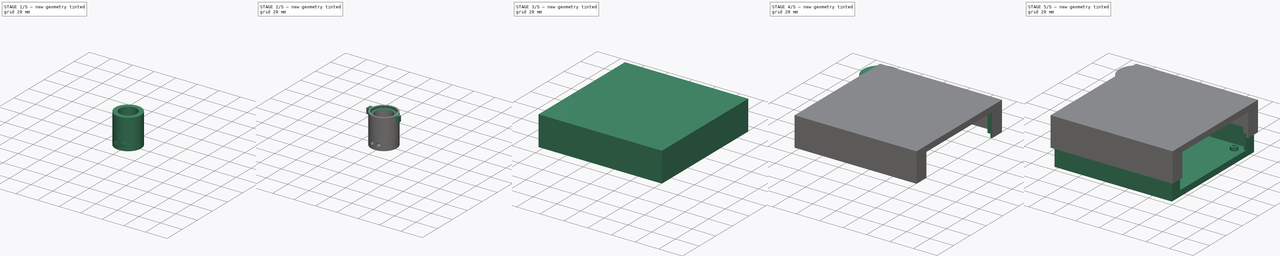
[diagram: build sequence overview — one tinted view per stage of 5, left to right]
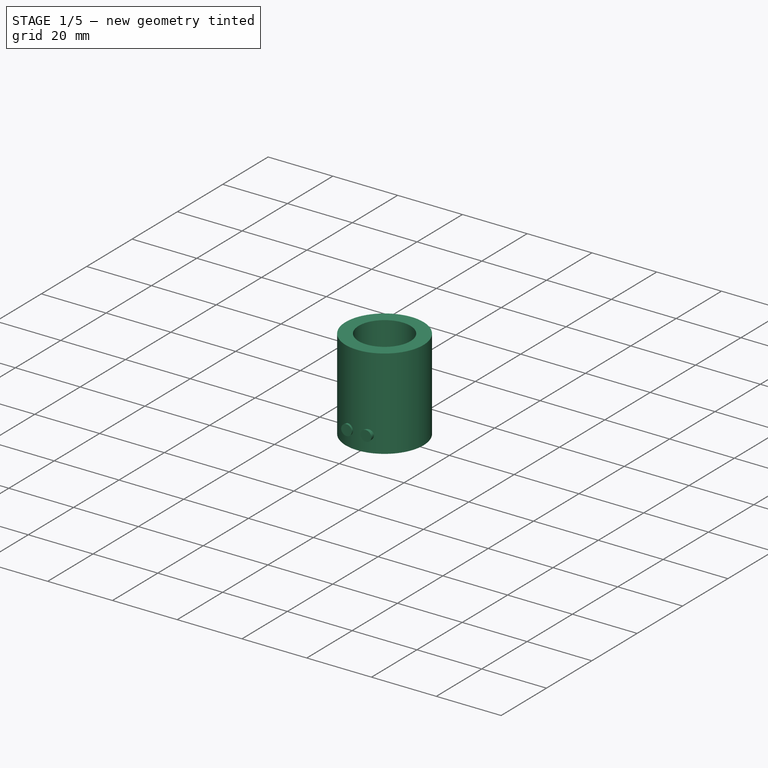
[diagram: stage 1 of 5 — iso view after this stage's code; geometry added in this stage tinted green]
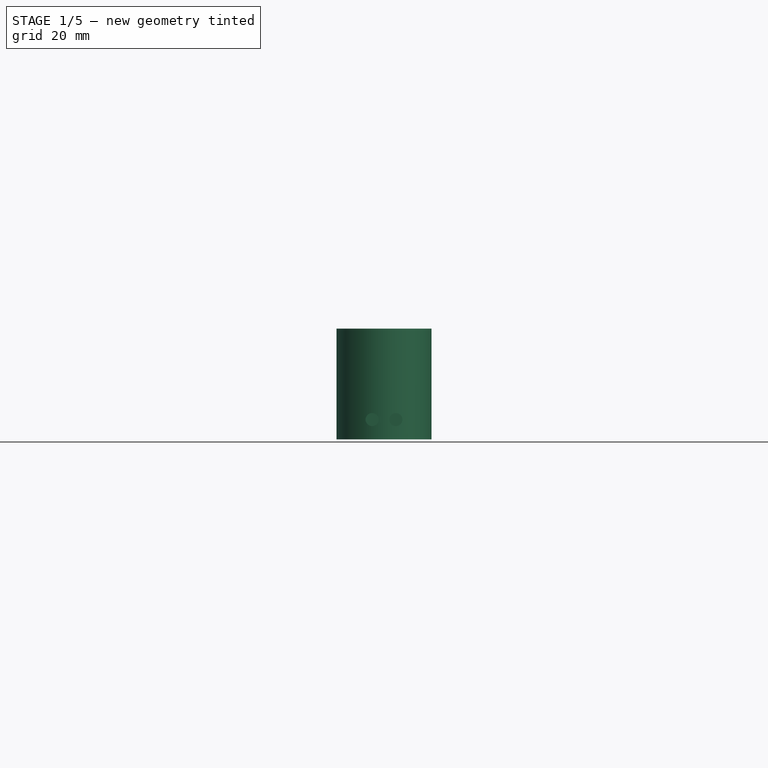
[diagram: stage 1 of 5 — front view after this stage's code; geometry added in this stage tinted green]
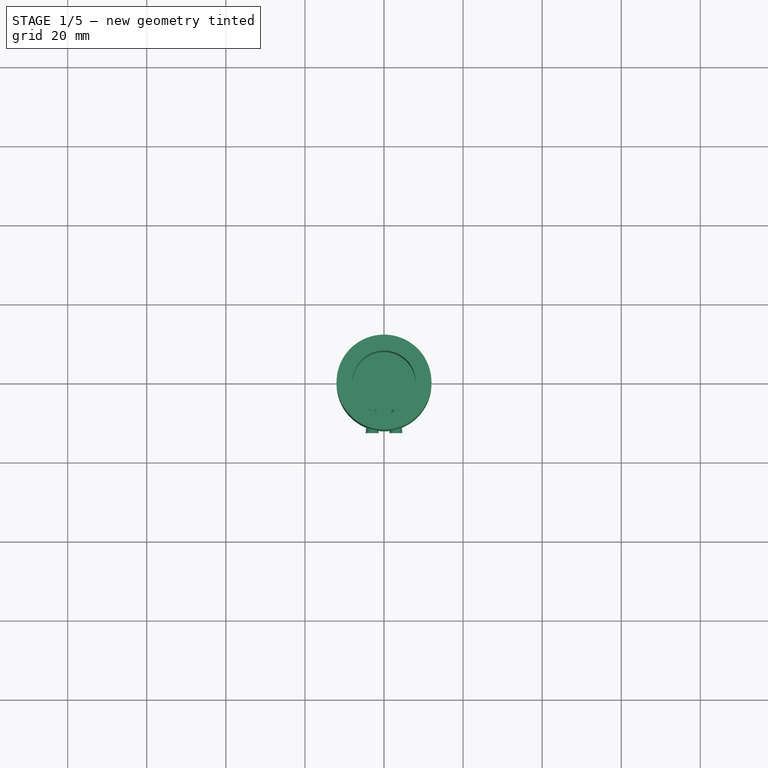
[diagram: stage 1 of 5 — top view after this stage's code; geometry added in this stage tinted green]
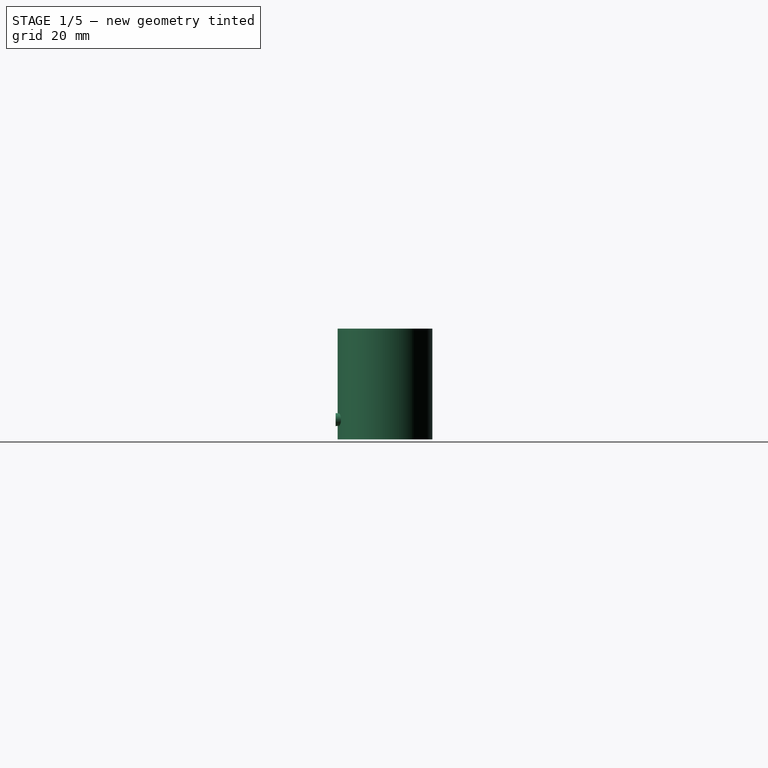
[diagram: stage 1 of 5 — right view after this stage's code; geometry added in this stage tinted green]
FCSTD DOCUMENT  (FreeCAD 0.20R29177 (Git))
Label: transwell_self_sealing
License: All rights reserved
LicenseURL: http://en.wikipedia.org/wiki/All_rights_reserved
objects: Sketcher::SketchObject×22, PartDesign::Pocket×12, PartDesign::Pad×6, PartDesign::Body×6, PartDesign::Fillet×2, PartDesign::AdditiveLoft×2, Spreadsheet::Sheet×1, Part::Compound×1, Part::Cut×1
note: 74 computed .brp shape members not serialized (recipe doc carries the construction recipe); baked Part::Feature solids carry a one-line shape summary decoded from their .brp

FEATURE [PartDesign::Body] Body  label="Case Bottom"
  Group = -> [Sketch,Pad,Sketch001,Pocket,Sketch002,Pad001,Sketch003,Pocket002]
  Origin = -> Origin
  Tip = -> Pocket002
FEATURE [Sketcher::SketchObject] Sketch004
  FullyConstrained = true
  MapMode = 5
  Support = -> [XY_Plane002]
  expr: Constraints[1] = <<parameters>>.TBU_outer_dia
  sketch-geometry (1):
    g0: Circle CenterX=0 CenterY=0 CenterZ=0 NormalX=0 NormalY=0 NormalZ=1 AngleXU=0 Radius=12
  constraints (2):
    c: Coincident(g0,g-1)
    c: Diameter(g0) = 24
FEATURE [PartDesign::Pad] Pad002  label="main body"
  Direction = (0,0,1)
  Length = 28
  Length2 = 10
  Profile = -> Sketch004
  ReferenceAxis = -> Sketch004 [N_Axis]
  Type = 0
  expr: Length = <<parameters>>.tbu_z_length
FEATURE [Sketcher::SketchObject] Sketch005
  AttachmentOffset = pos=(0,0,2) rot=(0,0,1;0rad)
  FullyConstrained = true
  MapMode = 5
  Placement = pos=(0,0,2) rot=(0,0,1;0rad)
  Support = -> [XY_Plane002]
  expr: .AttachmentOffset.Base.z = <<parameters>>.tbu_bottom_thickness
  expr: Constraints[1] = <<parameters>>.tbu_inner_dia
  sketch-geometry (1):
    g0: Circle CenterX=0 CenterY=0 CenterZ=0 NormalX=0 NormalY=0 NormalZ=1 AngleXU=0 Radius=8
  constraints (2):
    c: Coincident(g0,g-1)
    c: Diameter(g0) = 16
FEATURE [PartDesign::Pocket] Pocket003  label="inner chamber"
  BaseFeature = -> Pad002
  Direction = (0,0,-1)
  Length = 26
  Length2 = 5
  Profile = -> Sketch005
  ReferenceAxis = -> Sketch005 [N_Axis]
  Reversed = true
  Type = 0
  expr: Length = <<parameters>>.tbu_z_length - <<parameters>>.tbu_bottom_thickness
FEATURE [PartDesign::Body] Body002  label="transwell Bottom Unit"
  Group = -> [Sketch004,Pad002,Sketch005,Pocket003,Sketch006,Pocket004,Sketch008,Pad003,Fillet,Fillet001]
  Origin = -> Origin002
  Tip = -> Fillet001
FEATURE [Sketcher::SketchObject] Sketch021
  AttachmentOffset = pos=(-6,0,0) rot=(0,0,1;0rad)
  FullyConstrained = true
  MapMode = 5
  Placement = pos=(-6,0,0) rot=(1,0,0;1.5708rad)
  Support = -> [XZ_Plane005]
  expr: .AttachmentOffset.Base.x = -<<parameters>>.tbu_electrode_sep
  expr: Constraints[0] = <<parameters>>.tbu_electrode_dia
  expr: Constraints[1] = <<parameters>>.tbu_electrode_sep / 2
  expr: Constraints[2] = <<parameters>>.tbu_electrode_z_displace
  sketch-geometry (1):
    g0: Circle CenterX=3 CenterY=5 CenterZ=0 NormalX=0 NormalY=0 NormalZ=1 AngleXU=0 Radius=1
  constraints (3):
    c: Diameter(g0) = 2
    c: DistanceX(g-1,g0) = 3
    c: DistanceY(g-1,g0) = 5
FEATURE [Sketcher::SketchObject] Sketch022
  AttachmentOffset = pos=(-6,0,6) rot=(0,0,1;0rad)
  FullyConstrained = true
  MapMode = 5
  Placement = pos=(-6,-6,-1.3e-15) rot=(1,0,0;1.5708rad)
  Support = -> [XZ_Plane004]
  expr: .AttachmentOffset.Base.x = -<<parameters>>.tbu_electrode_sep
  expr: .AttachmentOffset.Base.y = 0
  expr: .AttachmentOffset.Base.z = <<parameters>>.tbu_gap_outer_inner_electrode
  expr: Constraints[0] = <<parameters>>.tbu_electrode_sep / 2
  expr: Constraints[1] = <<parameters>>.tbu_electrode_z_displace
  expr: Constraints[2] = <<parameters>>.tbu_outer_electrode_dia
  sketch-geometry (1):
    g0: Circle CenterX=3 CenterY=5 CenterZ=0 NormalX=0 NormalY=0 NormalZ=1 AngleXU=0 Radius=1.65
  constraints (3):
    c: DistanceX(g-1,g0) = 3
    c: DistanceY(g-1,g0) = 5
    c: Diameter(g0) = 3.3
FEATURE [PartDesign::AdditiveLoft] AdditiveLoft001  label="electrode 002"
  Closed = false
  Placement = pos=(0,0,0) rot=(1,0,0;1.5708rad)
  Profile = -> Sketch021
  Ruled = false
  Sections = -> [Sketch022]
FEATURE [PartDesign::Body] Body005  label="electrode_2"
  Group = -> [AdditiveLoft001,Sketch021]
  Origin = -> Origin005
  Tip = -> AdditiveLoft001
FEATURE [Sketcher::SketchObject] Sketch007
  FullyConstrained = true
  MapMode = 5
  Placement = pos=(0,0,0) rot=(1,0,0;1.5708rad)
  Support = -> [XZ_Plane004]
  expr: Constraints[0] = <<parameters>>.tbu_electrode_dia
  expr: Constraints[1] = <<parameters>>.tbu_electrode_sep / 2
  expr: Constraints[2] = <<parameters>>.tbu_electrode_z_displace
  sketch-geometry (1):
    g0: Circle CenterX=3 CenterY=5 CenterZ=0 NormalX=0 NormalY=0 NormalZ=1 AngleXU=0 Radius=1
  constraints (3):
    c: Diameter(g0) = 2
    c: DistanceX(g-1,g0) = 3
    c: DistanceY(g-1,g0) = 5
FEATURE [Sketcher::SketchObject] Sketch020
  AttachmentOffset = pos=(0,0,6) rot=(0,0,1;0rad)
  FullyConstrained = true
  MapMode = 5
  Placement = pos=(0,-6,-1.3e-15) rot=(1,0,0;1.5708rad)
  Support = -> [XZ_Plane004]
  expr: .AttachmentOffset.Base.x = 0
  expr: .AttachmentOffset.Base.y = 0
  expr: .AttachmentOffset.Base.z = <<parameters>>.tbu_gap_outer_inner_electrode
  expr: Constraints[0] = <<parameters>>.tbu_electrode_sep / 2
  expr: Constraints[1] = <<parameters>>.tbu_electrode_z_displace
  expr: Constraints[2] = <<parameters>>.tbu_outer_electrode_dia
  sketch-geometry (1):
    g0: Circle CenterX=3 CenterY=5 CenterZ=0 NormalX=0 NormalY=0 NormalZ=1 AngleXU=0 Radius=1.65
  constraints (3):
    c: DistanceX(g-1,g0) = 3
    c: DistanceY(g-1,g0) = 5
    c: Diameter(g0) = 3.3
FEATURE [PartDesign::AdditiveLoft] AdditiveLoft  label="electrode 1"
  Closed = false
  Placement = pos=(0,0,0) rot=(1,0,0;1.5708rad)
  Profile = -> Sketch007
  Ruled = false
  Sections = -> [Sketch020]
FEATURE [PartDesign::Body] Body004  label="electrode_1"
  Group = -> [Sketch007,Sketch020,AdditiveLoft]
  Origin = -> Origin004
  Tip = -> AdditiveLoft
FEATURE [Part::Compound] Compound  label="electrodes"
  Links = -> [Body004,Body005]
  Placement = pos=(0,-6.5,0) rot=(0,0,1;0rad)
  expr: .Placement.Base.y = -<<parameters>>.tbu_inner_dia / 2 + <<parameters>>.tbu_electrode_y_displace
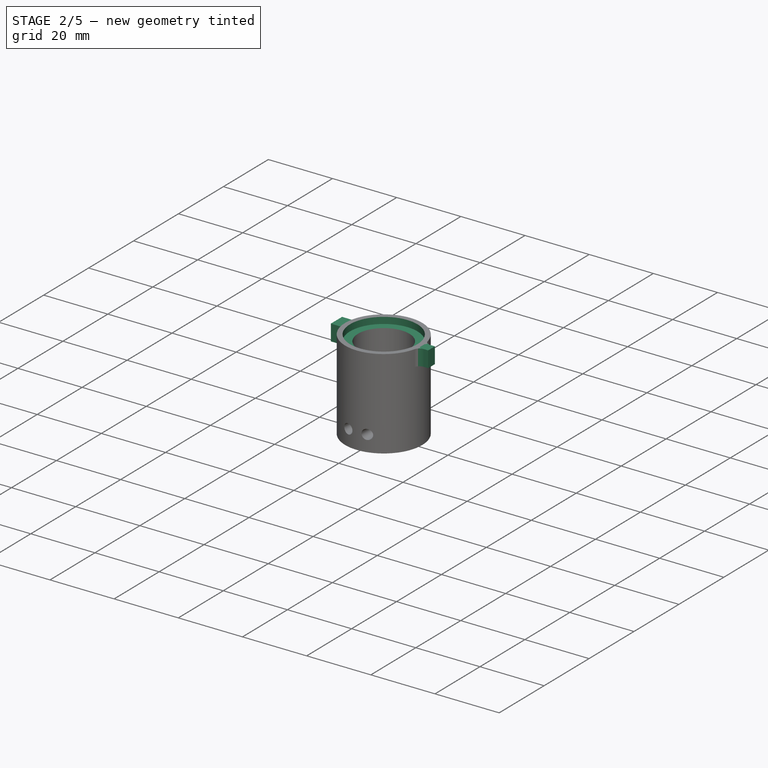
[diagram: stage 2 of 5 — iso view after this stage's code; geometry added in this stage tinted green]
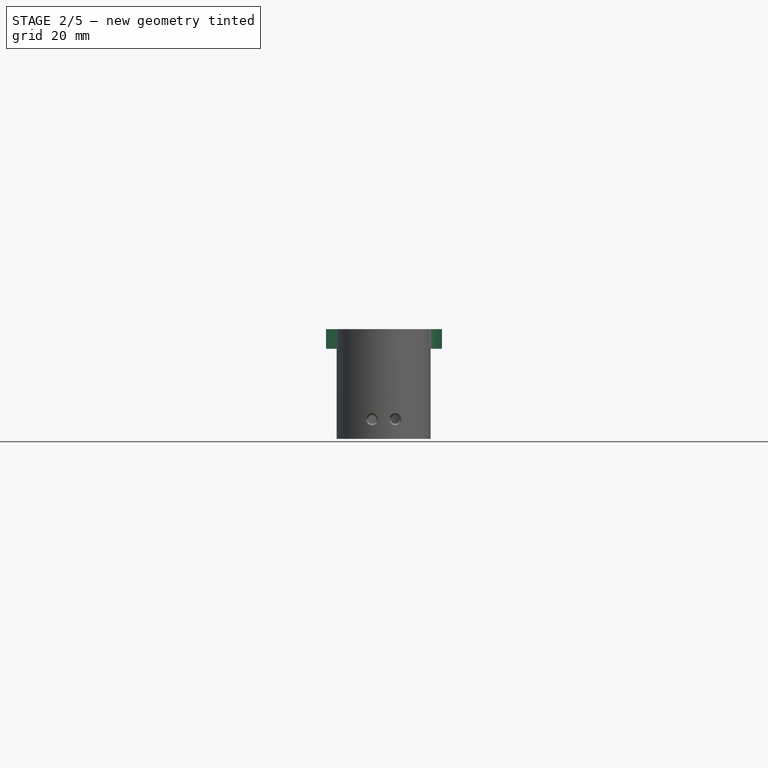
[diagram: stage 2 of 5 — front view after this stage's code; geometry added in this stage tinted green]
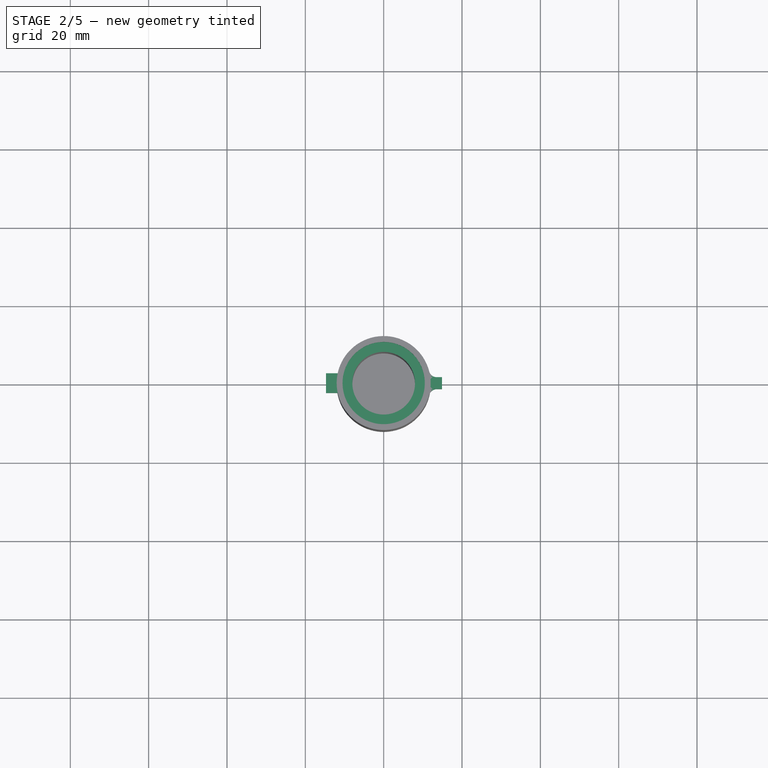
[diagram: stage 2 of 5 — top view after this stage's code; geometry added in this stage tinted green]
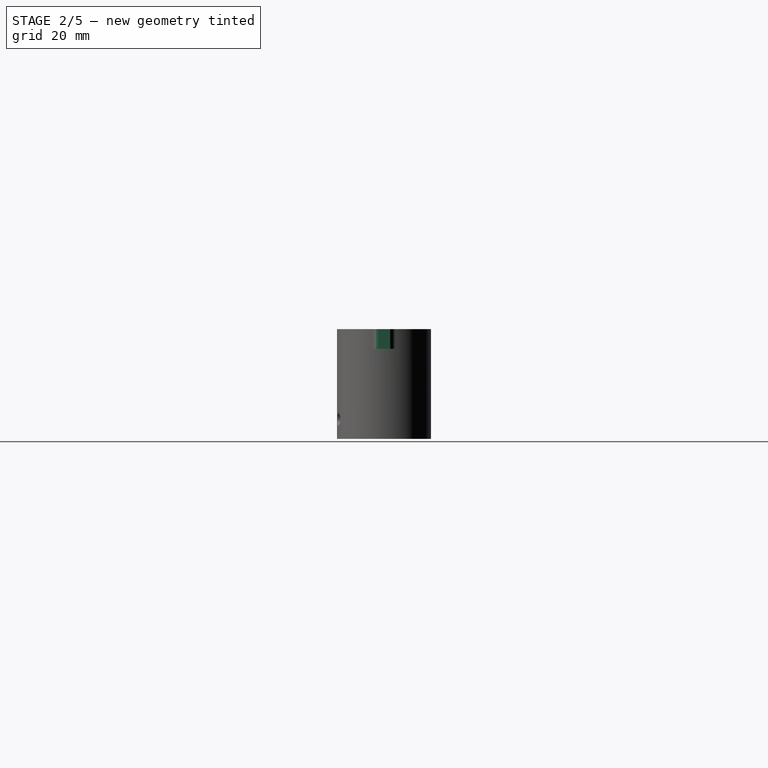
[diagram: stage 2 of 5 — right view after this stage's code; geometry added in this stage tinted green]
FEATURE [Sketcher::SketchObject] Sketch006
  AttachmentOffset = pos=(0,0,26) rot=(0,0,1;0rad)
  FullyConstrained = true
  MapMode = 5
  Placement = pos=(0,0,26) rot=(0,0,1;0rad)
  Support = -> [XY_Plane002]
  expr: .AttachmentOffset.Base.z = <<parameters>>.tbu_inner_rim_above_bottom + <<parameters>>.tbu_bottom_thickness
  expr: Constraints[1] = <<parameters>>.tbu_inner_rim_dia
  sketch-geometry (1):
    g0: Circle CenterX=0 CenterY=0 CenterZ=0 NormalX=0 NormalY=0 NormalZ=1 AngleXU=0 Radius=10.5
  constraints (2):
    c: Coincident(g0,g-1)
    c: Diameter(g0) = 21
FEATURE [PartDesign::Pocket] Pocket004  label="transwell rim platform"
  BaseFeature = -> Pocket003
  Direction = (0,0,-1)
  Length = 2
  Length2 = 5
  Profile = -> Sketch006
  ReferenceAxis = -> Sketch006 [N_Axis]
  Reversed = true
  Type = 0
  expr: Length = <<parameters>>.tbu_z_length - <<parameters>>.tbu_bottom_thickness - <<parameters>>.tbu_inner_rim_above_bottom
FEATURE [Sketcher::SketchObject] Sketch008
  AttachmentOffset = pos=(0,0,28) rot=(0,0,1;0rad)
  FullyConstrained = true
  MapMode = 5
  Placement = pos=(0,0,28) rot=(0,0,1;0rad)
  Support = -> [XY_Plane002]
  expr: .AttachmentOffset.Base.z = <<parameters>>.tbu_z_length
  expr: Constraints[10] = <<parameters>>.tbu_protrus_2_y_length
  expr: Constraints[11] = <<parameters>>.tbu_protrus_1_y_length
  expr: Constraints[12] = <<parameters>>.tbu_protrus_1_x_length
  expr: Constraints[13] = <<parameters>>.tbu_protrus_2_x_length
  expr: Constraints[16] = <<parameters>>.tbu_protrus_1_y_length / 2
  expr: Constraints[17] = <<parameters>>.tbu_protrus_2_y_length / 2
  expr: Constraints[18] = <<parameters>>.TBU_outer_dia / 2
  expr: Constraints[19] = <<parameters>>.TBU_outer_dia / 2
  sketch-geometry (8):
    g0: LineSegment StartX=-11.7367 StartY=2.5 StartZ=0 EndX=-14.7367 EndY=2.5 EndZ=0
    g1: LineSegment StartX=-14.7367 StartY=-2.5 StartZ=0 EndX=-11.7367 EndY=-2.5 EndZ=0
    g2: LineSegment StartX=-14.7367 StartY=2.5 StartZ=0 EndX=-14.7367 EndY=-2.5 EndZ=0
    g3: LineSegment StartX=11.9059 StartY=1.5 StartZ=0 EndX=14.9059 EndY=1.5 EndZ=0
    g4: LineSegment StartX=14.9059 StartY=1.5 StartZ=0 EndX=14.9059 EndY=-1.5 EndZ=0
    g5: LineSegment StartX=14.9059 StartY=-1.5 StartZ=0 EndX=11.9059 EndY=-1.5 EndZ=0
    g6: ArcOfCircle CenterX=0 CenterY=-5e-16 CenterZ=0 NormalX=0 NormalY=0 NormalZ=1 AngleXU=0 Radius=12 StartAngle=2.93172 EndAngle=3.35146
    g7: ArcOfCircle CenterX=0 CenterY=-7e-16 CenterZ=0 NormalX=0 NormalY=0 NormalZ=1 AngleXU=0 Radius=12 StartAngle=6.15786 EndAngle=6.40851
  constraints (26):
    c: Horizontal(g0)
    c: Coincident(g2,g0)
    c: Coincident(g2,g1)
    c: Coincident(g4,g3)
    c: Vertical(g4)
    c: Coincident(g5,g4)
    c: Perpendicular(g3,g4)
    c: Perpendicular(g4,g5)
    c: Perpendicular(g2,g0)
    c: Perpendicular(g2,g1)
    c: DistanceY(g4,g4) = 3
    c: DistanceY(g2,g2) = 5
    c: DistanceX(g0,g0) = 3
    c: DistanceX(g3,g3) = 3
    c: Vertical(g1,g0)
    c: Vertical(g3,g5)
    c: DistanceY(g-1,g0) = 2.5
    c: DistanceY(g-1,g3) = 1.5
    c: Distance(g-1,g0) = 12
    c: Distance(g-1,g3) = 12
    c: Coincident(g6,g0)
    c: Coincident(g6,g1)
    c: DistanceX(g6,g-1) = 0
    c: Coincident(g7,g3)
    c: Coincident(g7,g5)
    c: DistanceX(g6,g7) = 0
FEATURE [PartDesign::Pad] Pad003  label="asymmetric tabs"
  BaseFeature = -> Pocket004
  Direction = (0,0,1)
  Length = 5
  Length2 = 10
  Profile = -> Sketch008
  ReferenceAxis = -> Sketch008 [N_Axis]
  Reversed = true
  Type = 0
  expr: Length = <<parameters>>.tbu_protrus_1_z_length
FEATURE [PartDesign::Body] Body001  label="Case Top"
  Group = -> [Sketch014,Pad005,Sketch015,Pocket009,Sketch016,Pocket010,Sketch017,Sketch018,Sketch019,Pocket011,Pocket012,Pocket013]
  Origin = -> Origin001
  Tip = -> Pocket013
FEATURE [PartDesign::Fillet] Fillet
  Base = -> Pad003 [Edge2,Edge10]
  BaseFeature = -> Pad003
  Radius = 2
  SupportTransform = false
  UseAllEdges = false
  expr: Radius = 2
FEATURE [PartDesign::Fillet] Fillet001
  Base = -> Fillet [Edge11]
  BaseFeature = -> Fillet
  Radius = 2
  SupportTransform = false
  UseAllEdges = false
FEATURE [Part::Cut] Cut  label="transwell bottom unit"
  Base = -> Body002
  Tool = -> Compound
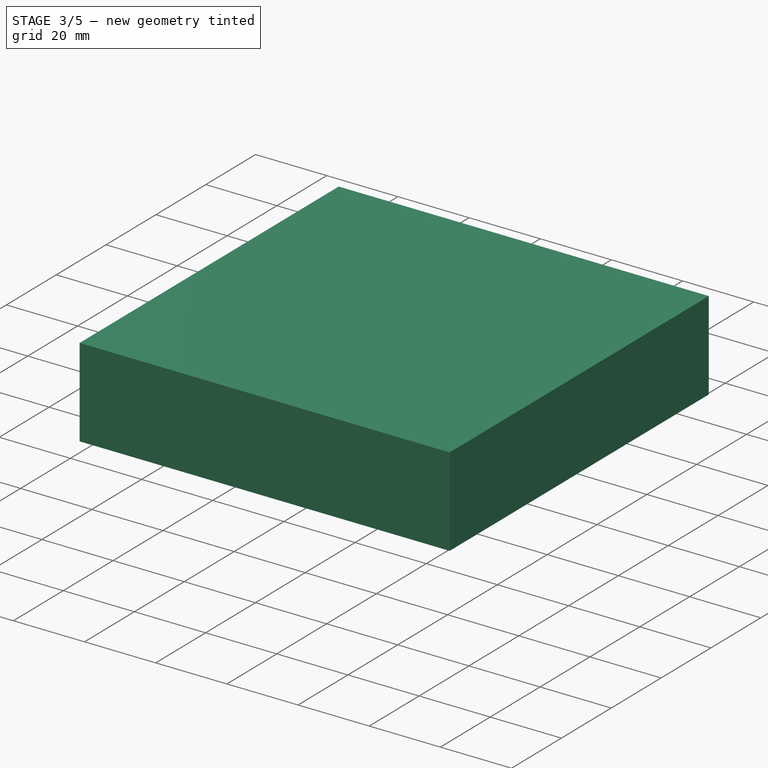
[diagram: stage 3 of 5 — iso view after this stage's code; geometry added in this stage tinted green]
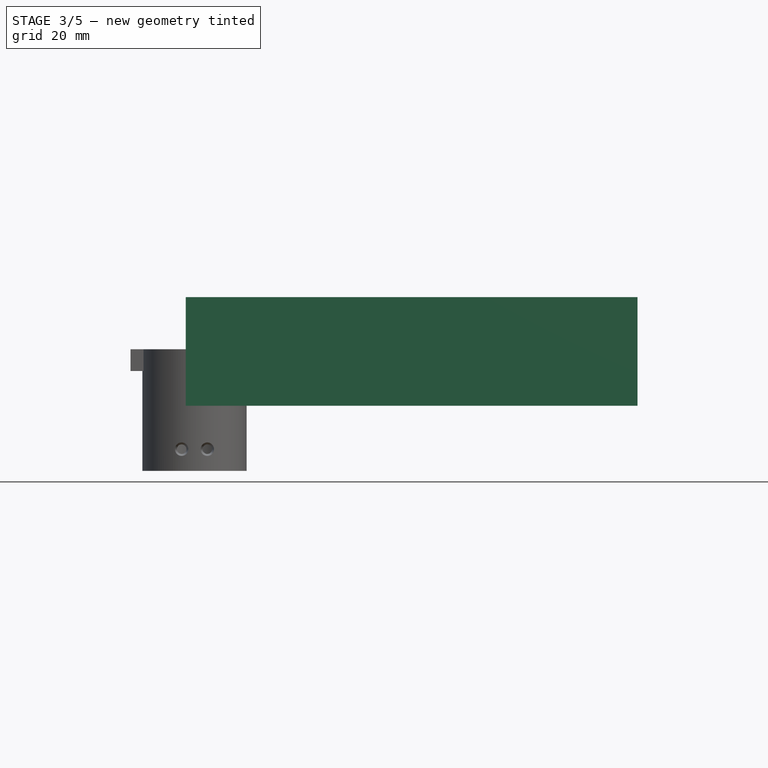
[diagram: stage 3 of 5 — front view after this stage's code; geometry added in this stage tinted green]
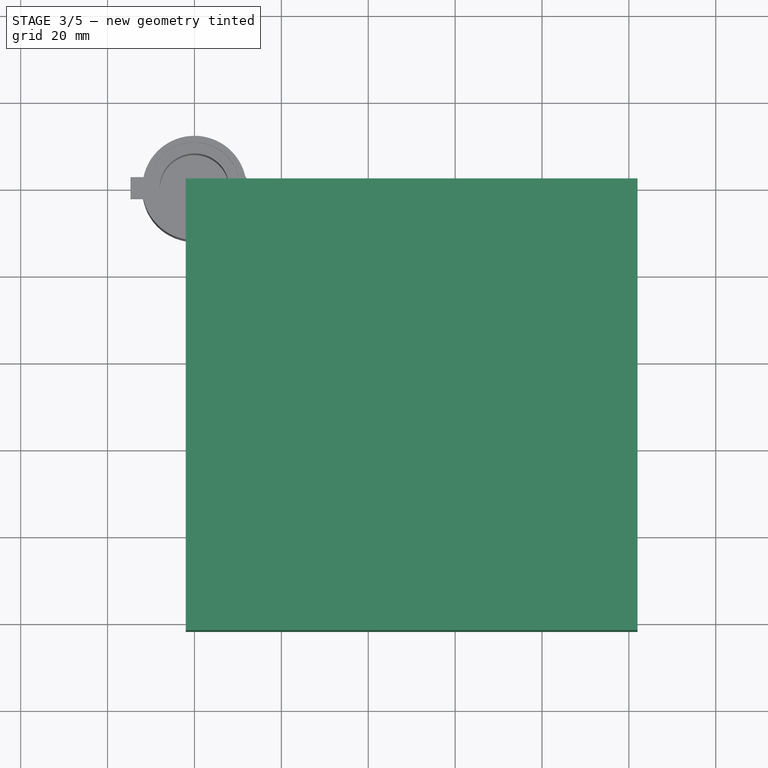
[diagram: stage 3 of 5 — top view after this stage's code; geometry added in this stage tinted green]
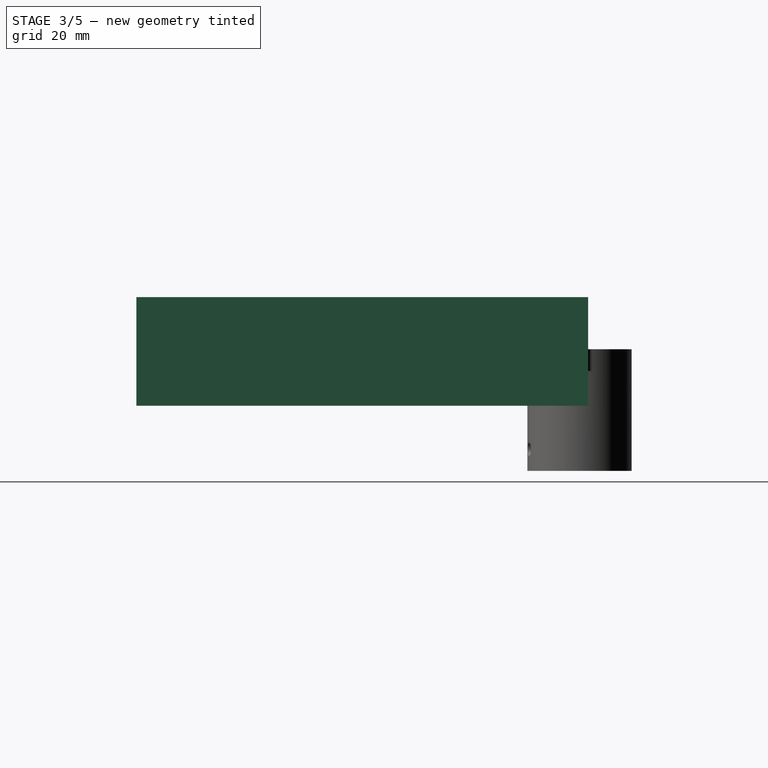
[diagram: stage 3 of 5 — right view after this stage's code; geometry added in this stage tinted green]
FEATURE [PartDesign::Body] Body003  label="transwell top"
  Group = -> [Sketch009,Pad004,Sketch010,Pocket006,Sketch011,Pocket007,Sketch012,Pocket008]
  Origin = -> Origin003
  Tip = -> Pocket008
FEATURE [Sketcher::SketchObject] Sketch014
  AttachmentOffset = pos=(0,0,15) rot=(0,0,1;0rad)
  FullyConstrained = true
  MapMode = 5
  Placement = pos=(0,0,15) rot=(0,0,1;0rad)
  Support = -> [XY_Plane001]
  expr: .AttachmentOffset.Base.z = <<parameters>>.mb_z_length - <<parameters>>.case_top_seam_z_length
  expr: Constraints[10] = <<parameters>>.mb_x_length + 2 * <<parameters>>.case_top_xy_beyond
  expr: Constraints[11] = <<parameters>>.mb_y_length + 2 * <<parameters>>.case_top_xy_beyond
  expr: Constraints[8] = <<parameters>>.case_top_xy_beyond
  expr: Constraints[9] = <<parameters>>.case_top_xy_beyond
  sketch-geometry (4):
    g0: LineSegment StartX=-2 StartY=2 StartZ=0 EndX=102 EndY=2 EndZ=0
    g1: LineSegment StartX=102 StartY=2 StartZ=0 EndX=102 EndY=-102 EndZ=0
    g2: LineSegment StartX=102 StartY=-102 StartZ=0 EndX=-2 EndY=-102 EndZ=0
    g3: LineSegment StartX=-2 StartY=-102 StartZ=0 EndX=-2 EndY=2 EndZ=0
  constraints (12):
    c: Coincident(g0,g1)
    c: Coincident(g1,g2)
    c: Coincident(g2,g3)
    c: Coincident(g3,g0)
    c: Horizontal(g0)
    c: Horizontal(g2)
    c: Vertical(g1)
    c: Vertical(g3)
    c: DistanceX(g0,g-1) = 2
    c: DistanceY(g-1,g0) = 2
    c: DistanceX(g0,g0) = 104
    c: DistanceY(g1,g1) = 104
FEATURE [PartDesign::Pad] Pad005  label="body"
  Direction = (0,0,1)
  Length = 25
  Length2 = 10
  Profile = -> Sketch014
  ReferenceAxis = -> Sketch014 [N_Axis]
  Type = 0
  expr: Length = <<parameters>>.case_top_z_length
FEATURE [Sketcher::SketchObject] Sketch015
  AttachmentOffset = pos=(0,0,15) rot=(0,0,1;0rad)
  FullyConstrained = true
  MapMode = 5
  Placement = pos=(0,0,15) rot=(0,0,1;0rad)
  Support = -> [XY_Plane001]
  expr: .AttachmentOffset.Base.z = <<parameters>>.mb_z_length - <<parameters>>.case_top_seam_z_length
  expr: Constraints[10] = <<parameters>>.mb_x_length + 2 * <<parameters>>.case_top_xy_seam_gaps
  expr: Constraints[11] = <<parameters>>.mb_y_length + 2 * <<parameters>>.case_top_xy_seam_gaps
  expr: Constraints[8] = <<parameters>>.case_top_xy_seam_gaps
  expr: Constraints[9] = <<parameters>>.case_top_xy_seam_gaps
  sketch-geometry (4):
    g0: LineSegment StartX=-0.5 StartY=0.5 StartZ=0 EndX=100.5 EndY=0.5 EndZ=0
    g1: LineSegment StartX=100.5 StartY=0.5 StartZ=0 EndX=100.5 EndY=-100.5 EndZ=0
    g2: LineSegment StartX=100.5 StartY=-100.5 StartZ=0 EndX=-0.5 EndY=-100.5 EndZ=0
    g3: LineSegment StartX=-0.5 StartY=-100.5 StartZ=0 EndX=-0.5 EndY=0.5 EndZ=0
  constraints (12):
    c: Coincident(g0,g1)
    c: Coincident(g1,g2)
    c: Coincident(g2,g3)
    c: Coincident(g3,g0)
    c: Horizontal(g0)
    c: Horizontal(g2)
    c: Vertical(g1)
    c: Vertical(g3)
    c: DistanceX(g0,g-1) = 0.5
    c: DistanceY(g-1,g0) = 0.5
    c: DistanceX(g0,g0) = 101
    c: DistanceY(g1,g1) = 101
FEATURE [PartDesign::Pocket] Pocket009  label="overlap seam"
  BaseFeature = -> Pad005
  Direction = (0,0,-1)
  Length = 3
  Length2 = 5
  Profile = -> Sketch015
  ReferenceAxis = -> Sketch015 [N_Axis]
  Reversed = true
  Type = 0
  expr: Length = <<parameters>>.case_top_seam_z_length
FEATURE [Sketcher::SketchObject] Sketch016
  AttachmentOffset = pos=(0,0,18) rot=(0,0,1;0rad)
  FullyConstrained = true
  MapMode = 5
  Placement = pos=(0,0,18) rot=(0,0,1;0rad)
  Support = -> [XY_Plane001]
  expr: .AttachmentOffset.Base.z = <<parameters>>.mb_z_length
  expr: Constraints[10] = <<parameters>>.mb_y_length - 2 * <<parameters>>.mb_wall_thickness
  expr: Constraints[11] = <<parameters>>.mb_wall_thickness
  expr: Constraints[8] = <<parameters>>.mb_wall_thickness
  expr: Constraints[9] = <<parameters>>.mb_x_length - 2 * <<parameters>>.mb_wall_thickness
  sketch-geometry (4):
    g0: LineSegment StartX=2 StartY=-2 StartZ=0 EndX=98 EndY=-2 EndZ=0
    g1: LineSegment StartX=98 StartY=-2 StartZ=0 EndX=98 EndY=-98 EndZ=0
    g2: LineSegment StartX=98 StartY=-98 StartZ=0 EndX=2 EndY=-98 EndZ=0
    g3: LineSegment StartX=2 StartY=-98 StartZ=0 EndX=2 EndY=-2 EndZ=0
  constraints (12):
    c: Coincident(g0,g1)
    c: Coincident(g1,g2)
    c: Coincident(g2,g3)
    c: Coincident(g3,g0)
    c: Horizontal(g0)
    c: Horizontal(g2)
    c: Vertical(g1)
    c: Vertical(g3)
    c: DistanceX(g-1,g0) = 2
    c: DistanceX(g0,g0) = 96
    c: DistanceY(g1,g1) = 96
    c: DistanceY(g0,g-1) = 2
FEATURE [PartDesign::Pocket] Pocket010  label="main cavity"
  BaseFeature = -> Pocket009
  Direction = (0,0,-1)
  Length = 20
  Length2 = 5
  Profile = -> Sketch016
  ReferenceAxis = -> Sketch016 [N_Axis]
  Reversed = true
  Type = 0
  expr: Length = <<parameters>>.case_top_z_length - <<parameters>>.mb_wall_thickness - <<parameters>>.case_top_seam_z_length
FEATURE [Sketcher::SketchObject] Sketch017
  AttachmentOffset = pos=(0,0,5) rot=(0,0,1;0rad)
  FullyConstrained = true
  MapMode = 5
  Placement = pos=(0,0,5) rot=(0,0,1;0rad)
  Support = -> [XY_Plane001]
  expr: .AttachmentOffset.Base.z = <<parameters>>.psu_z_displacement
  expr: Constraints[10] = <<parameters>>.arduino_y_length
  expr: Constraints[11] = <<parameters>>.case_top_xy_beyond
  expr: Constraints[8] = <<parameters>>.mb_wall_thickness + <<parameters>>.case_top_xy_beyond
  expr: Constraints[9] = <<parameters>>.arduino_y_displacement
  sketch-geometry (4):
    g0: LineSegment StartX=-2 StartY=-25 StartZ=0 EndX=2 EndY=-25 EndZ=0
    g1: LineSegment StartX=2 StartY=-25 StartZ=0 EndX=2 EndY=-50 EndZ=0
    g2: LineSegment StartX=2 StartY=-50 StartZ=0 EndX=-2 EndY=-50 EndZ=0
    g3: LineSegment StartX=-2 StartY=-50 StartZ=0 EndX=-2 EndY=-25 EndZ=0
  constraints (12):
    c: Coincident(g0,g1)
    c: Coincident(g1,g2)
    c: Coincident(g2,g3)
    c: Coincident(g3,g0)
    c: Horizontal(g0)
    c: Horizontal(g2)
    c: Vertical(g1)
    c: Vertical(g3)
    c: DistanceX(g0,g0) = 4
    c: DistanceY(g0,g-1) = 25
    c: DistanceY(g1,g1) = 25
    c: DistanceX(g0,g-1) = 2
FEATURE [Sketcher::SketchObject] Sketch018
  AttachmentOffset = pos=(0,0,5) rot=(0,0,1;0rad)
  FullyConstrained = true
  MapMode = 5
  Placement = pos=(0,0,5) rot=(0,0,1;0rad)
  Support = -> [XY_Plane001]
  expr: .AttachmentOffset.Base.z = <<parameters>>.arduino_z_displacement
  expr: Constraints[10] = <<parameters>>.psu_y_length
  expr: Constraints[11] = <<parameters>>.case_top_xy_beyond
  expr: Constraints[8] = <<parameters>>.mb_wall_thickness + <<parameters>>.case_top_xy_beyond
  expr: Constraints[9] = <<parameters>>.psu_y_displacement
  sketch-geometry (4):
    g0: LineSegment StartX=-2 StartY=-65 StartZ=0 EndX=2 EndY=-65 EndZ=0
    g1: LineSegment StartX=2 StartY=-65 StartZ=0 EndX=2 EndY=-90 EndZ=0
    g2: LineSegment StartX=2 StartY=-90 StartZ=0 EndX=-2 EndY=-90 EndZ=0
    g3: LineSegment StartX=-2 StartY=-90 StartZ=0 EndX=-2 EndY=-65 EndZ=0
  constraints (12):
    c: Coincident(g0,g1)
    c: Coincident(g1,g2)
    c: Coincident(g2,g3)
    c: Coincident(g3,g0)
    c: Horizontal(g0)
    c: Horizontal(g2)
    c: Vertical(g1)
    c: Vertical(g3)
    c: DistanceX(g0,g0) = 4
    c: DistanceY(g0,g-1) = 65
    c: DistanceY(g1,g1) = 25
    c: DistanceX(g0,g-1) = 2
FEATURE [Sketcher::SketchObject] Sketch019
  AttachmentOffset = pos=(0,0,5) rot=(0,0,1;0rad)
  FullyConstrained = true
  MapMode = 5
  Placement = pos=(0,0,5) rot=(0,0,1;0rad)
  Support = -> [XY_Plane001]
  expr: .AttachmentOffset.Base.z = <<parameters>>.rj45_z_displacement
  expr: Constraints[10] = <<parameters>>.rj45_y_displacement
  expr: Constraints[11] = <<parameters>>.mb_x_length + <<parameters>>.case_top_xy_beyond
  expr: Constraints[8] = <<parameters>>.mb_wall_thickness + <<parameters>>.case_top_xy_beyond
  expr: Constraints[9] = <<parameters>>.rj45_y_length
  sketch-geometry (4):
    g0: LineSegment StartX=98 StartY=-10 StartZ=0 EndX=102 EndY=-10 EndZ=0
    g1: LineSegment StartX=102 StartY=-10 StartZ=0 EndX=102 EndY=-90 EndZ=0
    g2: LineSegment StartX=102 StartY=-90 StartZ=0 EndX=98 EndY=-90 EndZ=0
    g3: LineSegment StartX=98 StartY=-90 StartZ=0 EndX=98 EndY=-10 EndZ=0
  constraints (12):
    c: Coincident(g0,g1)
    c: Coincident(g1,g2)
    c: Coincident(g2,g3)
    c: Coincident(g3,g0)
    c: Horizontal(g0)
    c: Horizontal(g2)
    c: Vertical(g1)
    c: Vertical(g3)
    c: DistanceX(g0,g0) = 4
    c: DistanceY(g3,g3) = 80
    c: DistanceY(g0,g-1) = 10
    c: DistanceX(g-1,g0) = 102
FEATURE [PartDesign::Pocket] Pocket011  label="psu socket"
  BaseFeature = -> Pocket010
  Direction = (0,0,-1)
  Length = 15
  Length2 = 5
  Profile = -> Sketch017
  ReferenceAxis = -> Sketch017 [N_Axis]
  Reversed = true
  Type = 0
  expr: Length = <<parameters>>.psu_z_length
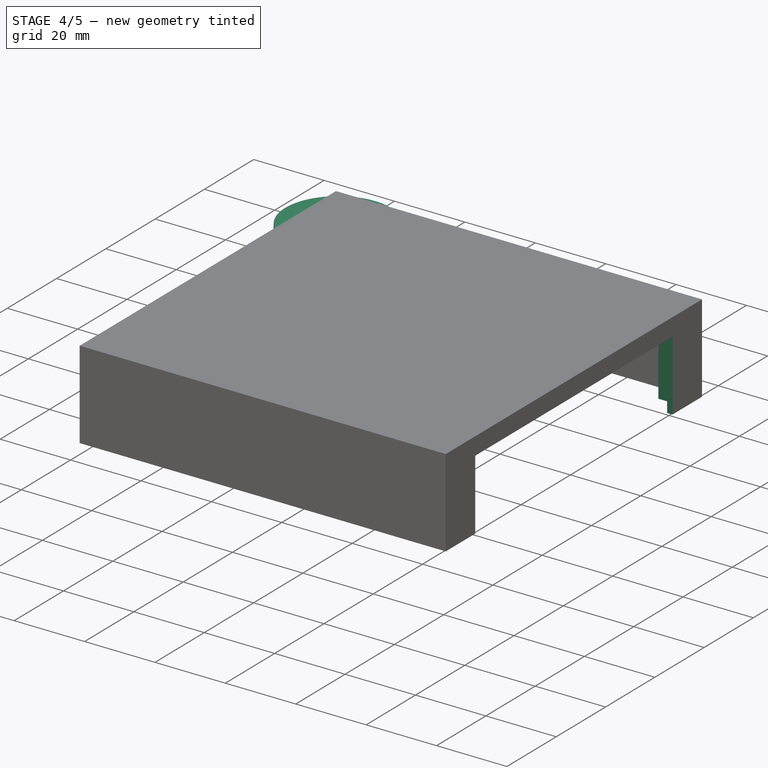
[diagram: stage 4 of 5 — iso view after this stage's code; geometry added in this stage tinted green]
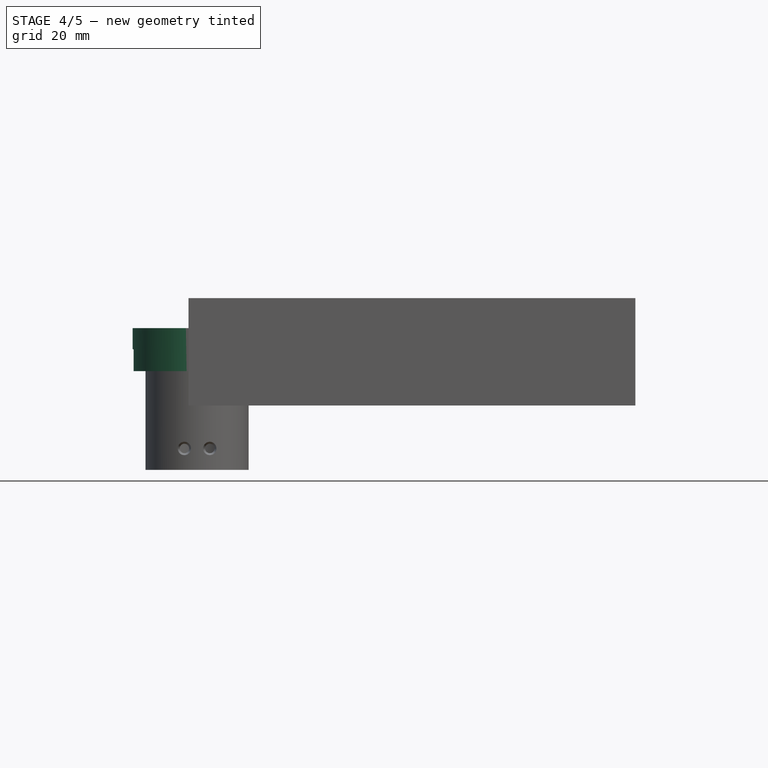
[diagram: stage 4 of 5 — front view after this stage's code; geometry added in this stage tinted green]
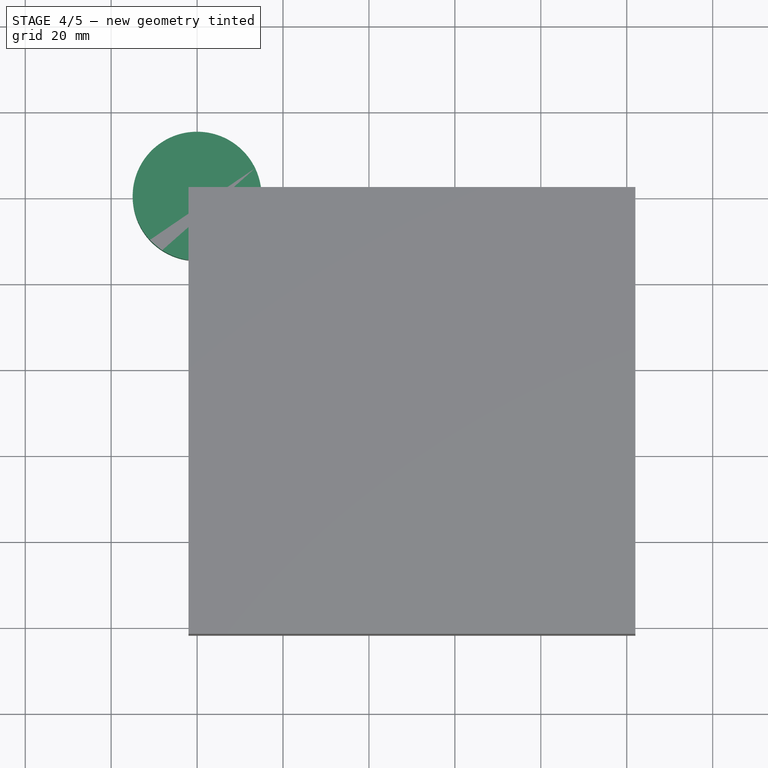
[diagram: stage 4 of 5 — top view after this stage's code; geometry added in this stage tinted green]
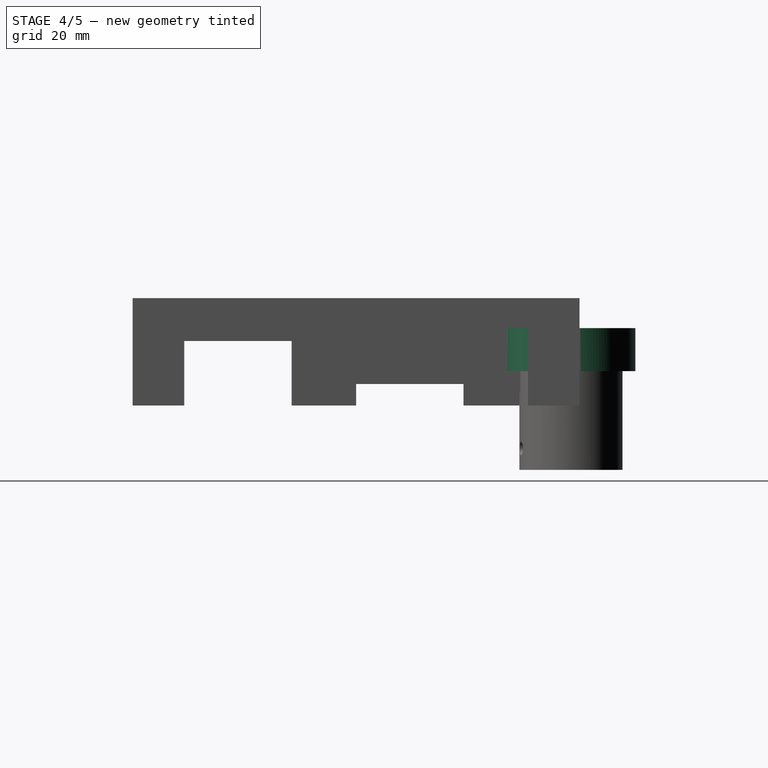
[diagram: stage 4 of 5 — right view after this stage's code; geometry added in this stage tinted green]
FEATURE [Sketcher::SketchObject] Sketch009
  AttachmentOffset = pos=(0,0,23) rot=(0,0,1;0rad)
  FullyConstrained = true
  MapMode = 5
  Placement = pos=(0,0,23) rot=(0,0,1;0rad)
  Support = -> [XY_Plane003]
  expr: .AttachmentOffset.Base.z = <<parameters>>.tbu_z_length - <<parameters>>.tbu_protrus_1_z_length
  expr: Constraints[1] = <<parameters>>.tt_outer_dia
  sketch-geometry (1):
    g0: Circle CenterX=0 CenterY=0 CenterZ=0 NormalX=0 NormalY=0 NormalZ=1 AngleXU=0 Radius=15
  constraints (2):
    c: Coincident(g0,g-1)
    c: Diameter(g0) = 30
FEATURE [PartDesign::Pad] Pad004  label="main body001"
  Direction = (0,0,1)
  Length = 10
  Length2 = 10
  Profile = -> Sketch009
  ReferenceAxis = -> Sketch009 [N_Axis]
  Type = 0
  expr: Length = <<parameters>>.tt_z_length
FEATURE [Sketcher::SketchObject] Sketch010
  AttachmentOffset = pos=(0,0,23) rot=(0,0,1;0rad)
  FullyConstrained = true
  MapMode = 5
  Placement = pos=(0,0,23) rot=(0,0,1;0rad)
  Support = -> [XY_Plane003]
  expr: .AttachmentOffset.Base.z = <<parameters>>.tbu_z_length - <<parameters>>.tbu_protrus_1_z_length
  expr: Constraints[1] = <<parameters>>.TBU_outer_dia + 2 * <<parameters>>.tt_gap_overlap_2_bottom
  sketch-geometry (1):
    g0: Circle CenterX=0 CenterY=0 CenterZ=0 NormalX=0 NormalY=0 NormalZ=1 AngleXU=0 Radius=12.1
  constraints (2):
    c: Coincident(g0,g-1)
    c: Diameter(g0) = 24.2
FEATURE [PartDesign::Pocket] Pocket006  label="overlap rim"
  BaseFeature = -> Pad004
  Direction = (0,0,-1)
  Length = 5
  Length2 = 5
  Profile = -> Sketch010
  ReferenceAxis = -> Sketch010 [N_Axis]
  Reversed = true
  Type = 0
  expr: Length = <<parameters>>.tbu_protrus_1_z_length
FEATURE [Sketcher::SketchObject] Sketch011
  AttachmentOffset = pos=(0,0,23) rot=(0,0,1;0rad)
  FullyConstrained = true
  MapMode = 5
  Placement = pos=(0,0,23) rot=(0,0,1;0rad)
  Support = -> [XY_Plane003]
  expr: .AttachmentOffset.Base.z = <<parameters>>.tbu_z_length - <<parameters>>.tbu_protrus_1_z_length
  expr: Constraints[10] = <<parameters>>.tbu_protrus_2_y_length + 2 * <<parameters>>.tt_gap_around_notches
  expr: Constraints[11] = <<parameters>>.tbu_protrus_1_y_length + 2 * <<parameters>>.tt_gap_around_notches
  expr: Constraints[12] = <<parameters>>.tt_outer_dia - <<parameters>>.TBU_outer_dia
  expr: Constraints[13] = <<parameters>>.tt_outer_dia - <<parameters>>.TBU_outer_dia
  expr: Constraints[16] = (<<parameters>>.tbu_protrus_1_y_length + 2 * <<parameters>>.tt_gap_around_notches) / 2
  expr: Constraints[17] = (<<parameters>>.tbu_protrus_2_y_length + 2 * <<parameters>>.tt_gap_around_notches) / 2
  expr: Constraints[18] = <<parameters>>.TBU_outer_dia / 2
  expr: Constraints[19] = <<parameters>>.TBU_outer_dia / 2
  sketch-geometry (8):
    g0: LineSegment StartX=-11.7149 StartY=2.6 StartZ=0 EndX=-17.7149 EndY=2.6 EndZ=0
    g1: LineSegment StartX=-17.7149 StartY=-2.6 StartZ=0 EndX=-11.7149 EndY=-2.6 EndZ=0
    g2: LineSegment StartX=-17.7149 StartY=2.6 StartZ=0 EndX=-17.7149 EndY=-2.6 EndZ=0
    g3: LineSegment StartX=11.8929 StartY=1.6 StartZ=0 EndX=17.8929 EndY=1.6 EndZ=0
    g4: LineSegment StartX=17.8929 StartY=1.6 StartZ=0 EndX=17.8929 EndY=-1.6 EndZ=0
    g5: LineSegment StartX=17.8929 StartY=-1.6 StartZ=0 EndX=11.8929 EndY=-1.6 EndZ=0
    g6: ArcOfCircle CenterX=0 CenterY=1e-15 CenterZ=0 NormalX=0 NormalY=0 NormalZ=1 AngleXU=0 Radius=12 StartAngle=2.92319 EndAngle=3.35999
    g7: ArcOfCircle CenterX=0 CenterY=1.6e-15 CenterZ=0 NormalX=0 NormalY=0 NormalZ=1 AngleXU=0 Radius=12 StartAngle=6.14945 EndAngle=6.41692
  constraints (26):
    c: Horizontal(g0)
    c: Coincident(g2,g0)
    c: Coincident(g2,g1)
    c: Coincident(g4,g3)
    c: Vertical(g4)
    c: Coincident(g5,g4)
    c: Perpendicular(g3,g4)
    c: Perpendicular(g4,g5)
    c: Perpendicular(g2,g0)
    c: Perpendicular(g2,g1)
    c: DistanceY(g4,g4) = 3.2
    c: DistanceY(g2,g2) = 5.2
    c: DistanceX(g0,g0) = 6
    c: DistanceX(g3,g3) = 6
    c: Vertical(g1,g0)
    c: Vertical(g3,g5)
    c: DistanceY(g-1,g0) = 2.6
    c: DistanceY(g-1,g3) = 1.6
    c: Distance(g-1,g0) = 12
    c: Distance(g-1,g3) = 12
    c: Coincident(g6,g0)
    c: Coincident(g6,g1)
    c: DistanceX(g6,g-1) = 0
    c: Coincident(g7,g3)
    c: Coincident(g7,g5)
    c: DistanceX(g6,g7) = 0
FEATURE [PartDesign::Pocket] Pocket007  label="protrusion sockets"
  BaseFeature = -> Pocket006
  Direction = (0,0,-1)
  Length = 5.1
  Length2 = 5
  Profile = -> Sketch011
  ReferenceAxis = -> Sketch011 [N_Axis]
  Reversed = true
  Type = 0
  expr: Length = <<parameters>>.tbu_protrus_1_z_length + <<parameters>>.tt_gap_around_notches
FEATURE [PartDesign::Pocket] Pocket012  label="arduino socket"
  BaseFeature = -> Pocket011
  Direction = (0,0,-1)
  Length = 25
  Length2 = 5
  Profile = -> Sketch018
  ReferenceAxis = -> Sketch018 [N_Axis]
  Reversed = true
  Type = 0
  expr: Length = <<parameters>>.arduino_z_length
FEATURE [PartDesign::Pocket] Pocket013  label="rj45 socket"
  BaseFeature = -> Pocket012
  Direction = (0,0,-1)
  Length = 30
  Length2 = 5
  Profile = -> Sketch019
  ReferenceAxis = -> Sketch019 [N_Axis]
  Reversed = true
  Type = 0
  expr: Length = <<parameters>>.rj45_z_length
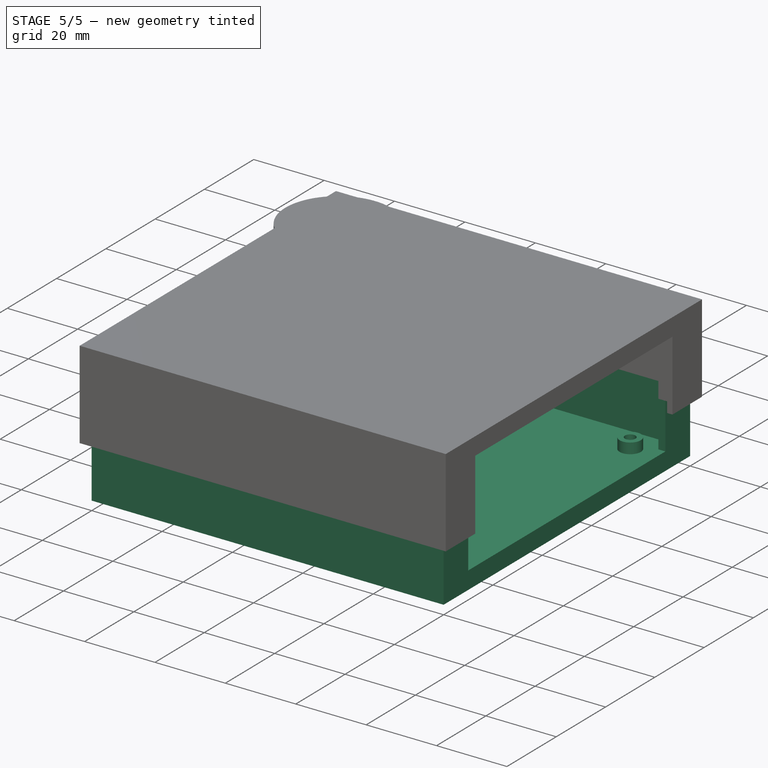
[diagram: stage 5 of 5 — iso view after this stage's code; geometry added in this stage tinted green]
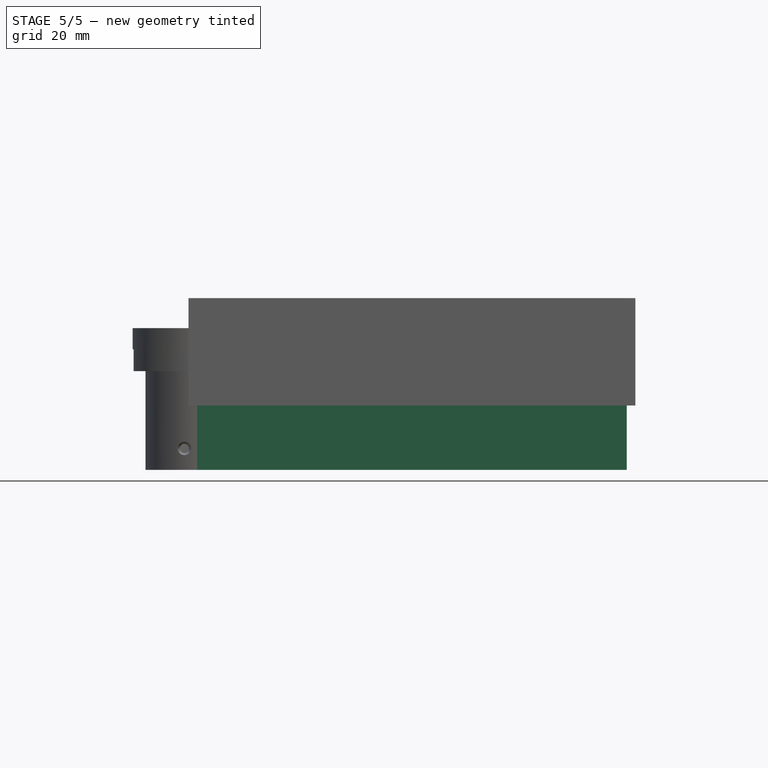
[diagram: stage 5 of 5 — front view after this stage's code; geometry added in this stage tinted green]
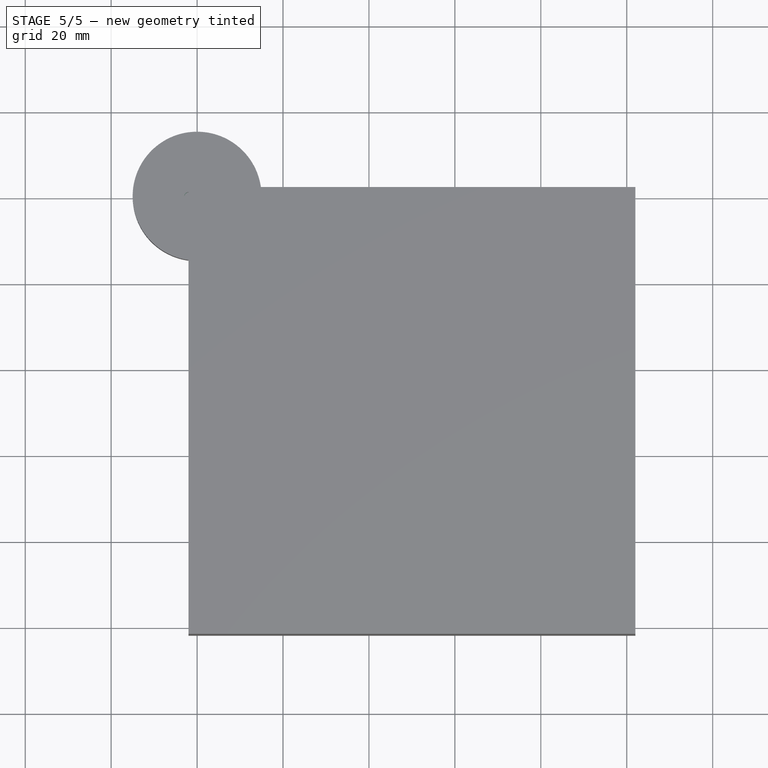
[diagram: stage 5 of 5 — top view after this stage's code; geometry added in this stage tinted green]
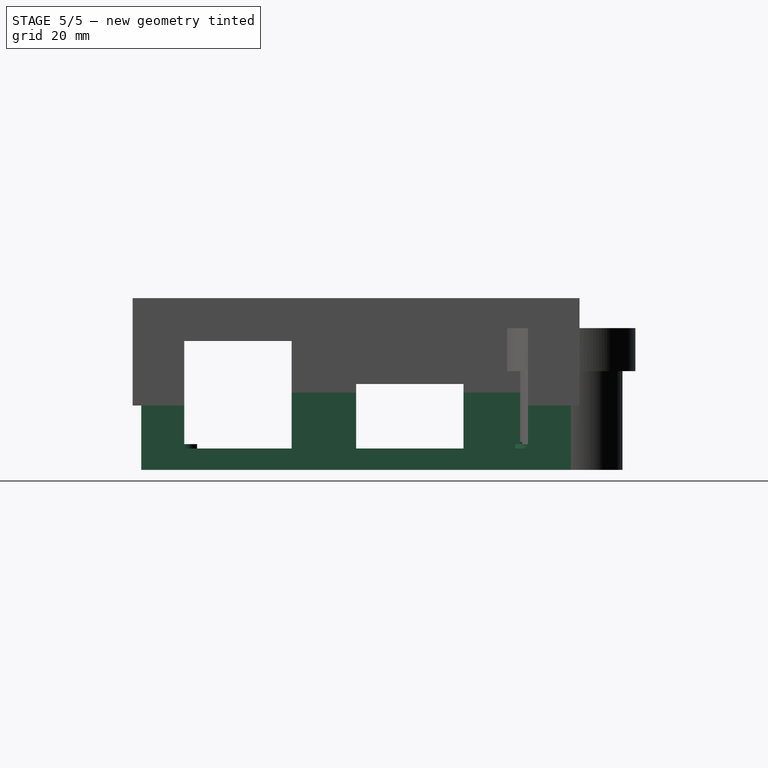
[diagram: stage 5 of 5 — right view after this stage's code; geometry added in this stage tinted green]
FEATURE [Spreadsheet::Sheet] Spreadsheet  label="parameters"
  cells = A1=Case Bottom; A2=Main Body; A3=X length; B3(mb_x_length)=100; A4=Y length; B4(mb_y_length)=100; A5=Z length; B5(mb_z_length)=18; A6=wall thickness; B6(mb_wall_thickness)=2; A7=wall height; B7(mb_wall_height)=15; A8=bottom thickness; B8(mb_bottom_thickness)==B5 - B7; C8=calculated (z length - wall height; A10=Support Pillars; A11=X separation; B11(sp_x_sep)=80; A12=Y separation; B12(sp_y_sep)=80; A13=x displacement; B13(sp_x_displacement)=10; C13=from upper left corner; A14=y displacement; B14(sp_y_displacement)=10; C14=from upper left corner; A15=diameter; B15(sp_pillar_dia)=6; A16=height; B16(sp_pillar_height)=3; A17=screw hole diameter; B17(sp_screwhole_dia)=3; A18=screw hole depth; B18(sp_screwhole_depth)=5; A20=RJ45 Cutout; A21=Z length; B21(rj45_z_length)=30; A22=Y length; B22(rj45_y_length)=80; A23=z displacment; B23(rj45_z_displacement)=5; C23=from bottom (aka bottom of the bottom piece); A24=y displacement; B24(rj45_y_displacement)=10; C24=from far side; A26=PSU Cutout; A27=Z length; B27(psu_z_length)=15; A28=Y length; B28(psu_y_length)=25; A29=z displacment; B29(psu_z_displacement)=5; C29=from bottom (aka bottom of the bottom piece); A30=y displacement; B30(psu_y_displacement)=65; C30=from far side; A32=Arduino USB Cutout; A33=Z length; B33(arduino_z_length)=25; A34=Y length; B34(arduino_y_length)=25; A35=z displacment; B35(arduino_z_displacement)=5; C35=from bottom (aka bottom of the bottom piece); A36=y displacement; B36(arduino_y_displacement)=25; C36=from far side; A40=Case Top; A42=main body; A43=z length; B43(case_top_z_length)=25; A44=x, y beyond lower main body; B44(case_top_xy_beyond)=2; A45=seam overlap z length; B45(case_top_seam_z_length)=3; A46=seam xy gaps; B46(case_top_xy_seam_gaps)=0.5; A63=Transwell bottom Unit; A64=outer diameter; B64(TBU_outer_dia)=24; A65=inner diameter; B65(tbu_inner_dia)=16; A66=bottom thickness; B66(tbu_bottom_thickness)=2; A67=z length; B67(tbu_z_length)=28; A68=inner electrode hole dia; B68(tbu_electrode_dia)=2; A69=outer electrode hole dia; B69(tbu_outer_electrode_dia)=3.3; A70=gap between inner and outer dia electrode; B70(tbu_gap_outer_inner_electrode)=6; A71=electrode hole z displacement; B71(tbu_electrode_z_displace)=5; A72=electrode hole separation; B72(tbu_electrode_sep)=6; A73=electrodes y dispalcement; B73(tbu_electrode_y_displace)=1.5; A75=inner rim height above bottom; B75(tbu_inner_rim_above_bottom)=24; A76=inner rim dia; B76(tbu_inner_rim_dia)=21; A77=protrusion tip 1 x_length; B77(tbu_protrus_1_x_length)=3; A78=protrusion tip 1 y_length; B78(tbu_protrus_1_y_length)=5; A79=protrusion tip 1 and 2 z_length; B79(tbu_protrus_1_z_length)=5; A80=protrusion tip 2 x_length; B80(tbu_protrus_2_x_length)=3; A81=protrusion tip 2 y_length; B81(tbu_protrus_2_y_length)=3; A84=transwell top; A85=outer diameter; B85(tt_outer_dia)=30; A86=gap overlap to bottom unit; B86(tt_gap_overlap_2_bottom)=0.1; A87=z length; B87(tt_z_length)=10; A88=electrode dia; B88(tt_electrode_dia)=1.9; C88=same as bottom size; A89=electrode gap; B89(tt_electrode_gap)=4; A90=gaps around bottom notches; B90(tt_gap_around_notches)=0.1; C90=applied to every side that touches notch
FEATURE [Sketcher::SketchObject] Sketch
  FullyConstrained = true
  MapMode = 5
  Support = -> [XY_Plane]
  expr: Constraints[10] = <<parameters>>.mb_y_length
  expr: Constraints[9] = <<parameters>>.mb_x_length
  sketch-geometry (4):
    g0: LineSegment StartX=0 StartY=0 StartZ=0 EndX=100 EndY=0 EndZ=0
    g1: LineSegment StartX=100 StartY=0 StartZ=0 EndX=100 EndY=-100 EndZ=0
    g2: LineSegment StartX=100 StartY=-100 StartZ=0 EndX=0 EndY=-100 EndZ=0
    g3: LineSegment StartX=0 StartY=-100 StartZ=0 EndX=0 EndY=0 EndZ=0
  constraints (11):
    c: Coincident(g0,g1)
    c: Coincident(g1,g2)
    c: Coincident(g2,g3)
    c: Coincident(g3,g0)
    c: Horizontal(g0)
    c: Horizontal(g2)
    c: Vertical(g1)
    c: Vertical(g3)
    c: Coincident(g0,g-1)
    c: DistanceX(g0,g0) = 100
    c: DistanceY(g1,g1) = 100
FEATURE [PartDesign::Pad] Pad  label="body block"
  Direction = (0,0,1)
  Length = 18
  Length2 = 10
  Profile = -> Sketch
  ReferenceAxis = -> Sketch [N_Axis]
  Type = 0
  expr: Length = <<parameters>>.mb_z_length
FEATURE [Sketcher::SketchObject] Sketch001
  AttachmentOffset = pos=(0,0,18) rot=(0,0,1;0rad)
  FullyConstrained = true
  MapMode = 5
  Placement = pos=(0,0,18) rot=(0,0,1;0rad)
  Support = -> [XY_Plane]
  expr: .AttachmentOffset.Base.z = <<parameters>>.mb_z_length
  expr: Constraints[10] = <<parameters>>.mb_wall_thickness
  expr: Constraints[11] = <<parameters>>.mb_wall_thickness
  expr: Constraints[8] = <<parameters>>.mb_x_length - <<parameters>>.mb_wall_thickness * 2
  expr: Constraints[9] = <<parameters>>.mb_y_length - <<parameters>>.mb_wall_thickness * 2
  sketch-geometry (4):
    g0: LineSegment StartX=2 StartY=-2 StartZ=0 EndX=98 EndY=-2 EndZ=0
    g1: LineSegment StartX=98 StartY=-2 StartZ=0 EndX=98 EndY=-98 EndZ=0
    g2: LineSegment StartX=98 StartY=-98 StartZ=0 EndX=2 EndY=-98 EndZ=0
    g3: LineSegment StartX=2 StartY=-98 StartZ=0 EndX=2 EndY=-2 EndZ=0
  constraints (12):
    c: Coincident(g0,g1)
    c: Coincident(g1,g2)
    c: Coincident(g2,g3)
    c: Coincident(g3,g0)
    c: Horizontal(g0)
    c: Horizontal(g2)
    c: Vertical(g1)
    c: Vertical(g3)
    c: DistanceX(g0,g0) = 96
    c: DistanceY(g1,g1) = 96
    c: DistanceY(g0,g-1) = 2
    c: DistanceX(g-1,g0) = 2
FEATURE [PartDesign::Pocket] Pocket  label="main board socket"
  BaseFeature = -> Pad
  Direction = (0,0,-1)
  Length = 15
  Length2 = 5
  Profile = -> Sketch001
  ReferenceAxis = -> Sketch001 [N_Axis]
  Type = 0
  expr: Length = <<parameters>>.mb_wall_height
FEATURE [Sketcher::SketchObject] Sketch002
  AttachmentOffset = pos=(0,0,3) rot=(0,0,1;0rad)
  FullyConstrained = true
  MapMode = 5
  Placement = pos=(0,0,3) rot=(0,0,1;0rad)
  Support = -> [XY_Plane]
  expr: .AttachmentOffset.Base.z = <<parameters>>.mb_bottom_thickness
  expr: Constraints[0] = <<parameters>>.sp_x_sep
  expr: Constraints[10] = <<parameters>>.sp_x_displacement
  expr: Constraints[11] = <<parameters>>.sp_y_displacement
  expr: Constraints[13] = <<parameters>>.sp_screwhole_dia
  expr: Constraints[17] = <<parameters>>.sp_screwhole_dia
  expr: Constraints[18] = <<parameters>>.sp_screwhole_dia
  expr: Constraints[19] = <<parameters>>.sp_screwhole_dia
  expr: Constraints[1] = <<parameters>>.sp_y_sep
  expr: Constraints[6] = <<parameters>>.sp_pillar_dia
  expr: Constraints[7] = <<parameters>>.sp_pillar_dia
  expr: Constraints[8] = <<parameters>>.sp_pillar_dia
  expr: Constraints[9] = <<parameters>>.sp_pillar_dia
  sketch-geometry (8):
    g0: Circle CenterX=10 CenterY=-10 CenterZ=0 NormalX=0 NormalY=0 NormalZ=1 AngleXU=0 Radius=3
    g1: Circle CenterX=90 CenterY=-10 CenterZ=0 NormalX=0 NormalY=0 NormalZ=1 AngleXU=0 Radius=3
    g2: Circle CenterX=90 CenterY=-90 CenterZ=0 NormalX=0 NormalY=0 NormalZ=1 AngleXU=0 Radius=3
    g3: Circle CenterX=10 CenterY=-90 CenterZ=0 NormalX=0 NormalY=0 NormalZ=1 AngleXU=0 Radius=3
    g4: Circle CenterX=10 CenterY=-10 CenterZ=0 NormalX=0 NormalY=0 NormalZ=1 AngleXU=0 Radius=1.5
    g5: Circle CenterX=90 CenterY=-10 CenterZ=0 NormalX=0 NormalY=0 NormalZ=1 AngleXU=0 Radius=1.5
    g6: Circle CenterX=90 CenterY=-90 CenterZ=0 NormalX=0 NormalY=0 NormalZ=1 AngleXU=0 Radius=1.5
    g7: Circle CenterX=10 CenterY=-90 CenterZ=0 NormalX=0 NormalY=0 NormalZ=1 AngleXU=0 Radius=1.5
  constraints (20):
    c: DistanceX(g0,g1) = 80
    c: DistanceY(g2,g1) = 80
    c: Horizontal(g1,g0)
    c: Horizontal(g3,g2)
    c: Vertical(g0,g3)
    c: Vertical(g2,g1)
    c: Diameter(g1) = 6
    c: Diameter(g2) = 6
    c: Diameter(g0) = 6
    c: Diameter(g3) = 6
    c: DistanceX(g-1,g0) = 10
    c: DistanceY(g0,g-1) = 10
    c: Coincident(g4,g0)
    c: Diameter(g4) = 3
    c: Coincident(g5,g1)
    c: Coincident(g6,g2)
    c: Coincident(g7,g3)
    c: Diameter(g7) = 3
    c: Diameter(g6) = 3
    c: Diameter(g5) = 3
FEATURE [PartDesign::Pad] Pad001  label="support pillars"
  BaseFeature = -> Pocket
  Direction = (0,0,1)
  Length = 3
  Length2 = 10
  Profile = -> Sketch002
  ReferenceAxis = -> Sketch002 [N_Axis]
  Type = 0
  expr: Length = <<parameters>>.sp_pillar_height
FEATURE [Sketcher::SketchObject] Sketch003
  AttachmentOffset = pos=(0,0,18) rot=(0,0,1;0rad)
  FullyConstrained = true
  MapMode = 5
  Placement = pos=(0,0,18) rot=(0,0,1;0rad)
  Support = -> [XY_Plane]
  expr: .AttachmentOffset.Base.z = <<parameters>>.mb_z_length
  expr: Constraints[24] = <<parameters>>.mb_x_length
  expr: Constraints[26] = <<parameters>>.mb_wall_thickness
  expr: Constraints[27] = <<parameters>>.mb_wall_thickness
  expr: Constraints[28] = <<parameters>>.mb_wall_thickness
  expr: Constraints[29] = <<parameters>>.psu_y_displacement
  expr: Constraints[30] = <<parameters>>.psu_y_length
  expr: Constraints[31] = <<parameters>>.arduino_y_displacement
  expr: Constraints[32] = <<parameters>>.arduino_y_length
  expr: Constraints[33] = <<parameters>>.rj45_y_length
  expr: Constraints[34] = <<parameters>>.rj45_y_displacement
  sketch-geometry (12):
    g0: LineSegment StartX=0 StartY=-65 StartZ=0 EndX=2 EndY=-65 EndZ=0
    g1: LineSegment StartX=2 StartY=-65 StartZ=0 EndX=2 EndY=-90 EndZ=0
    g2: LineSegment StartX=2 StartY=-90 StartZ=0 EndX=0 EndY=-90 EndZ=0
    g3: LineSegment StartX=0 StartY=-90 StartZ=0 EndX=0 EndY=-65 EndZ=0
    g4: LineSegment StartX=0 StartY=-25 StartZ=0 EndX=2 EndY=-25 EndZ=0
    g5: LineSegment StartX=2 StartY=-25 StartZ=0 EndX=2 EndY=-50 EndZ=0
    g6: LineSegment StartX=2 StartY=-50 StartZ=0 EndX=0 EndY=-50 EndZ=0
    g7: LineSegment StartX=0 StartY=-50 StartZ=0 EndX=0 EndY=-25 EndZ=0
    g8: LineSegment StartX=98 StartY=-10 StartZ=0 EndX=100 EndY=-10 EndZ=0
    g9: LineSegment StartX=100 StartY=-10 StartZ=0 EndX=100 EndY=-90 EndZ=0
    g10: LineSegment StartX=100 StartY=-90 StartZ=0 EndX=98 EndY=-90 EndZ=0
    g11: LineSegment StartX=98 StartY=-90 StartZ=0 EndX=98 EndY=-10 EndZ=0
  constraints (36):
    c: Coincident(g0,g1)
    c: Coincident(g1,g2)
    c: Coincident(g2,g3)
    c: Coincident(g3,g0)
    c: Horizontal(g0)
    c: Horizontal(g2)
    c: Vertical(g1)
    c: Vertical(g3)
    c: Coincident(g4,g5)
    c: Coincident(g5,g6)
    c: Coincident(g6,g7)
    c: Coincident(g7,g4)
    c: Horizontal(g4)
    c: Horizontal(g6)
    c: Vertical(g5)
    c: Vertical(g7)
    c: Coincident(g8,g9)
    c: Coincident(g9,g10)
    c: Coincident(g10,g11)
    c: Coincident(g11,g8)
    c: Horizontal(g8)
    c: Horizontal(g10)
    c: Vertical(g9)
    c: Vertical(g11)
    c: DistanceX(g0,g8) = 100
    c: Vertical(g4,g2)
    c: DistanceX(g0,g0) = 2
    c: DistanceX(g4,g4) = 2
    c: DistanceX(g8,g8) = 2
    c: DistanceY(g0,g-1) = 65
    c: DistanceY(g1,g1) = 25
    c: DistanceY(g4,g-1) = 25
    c: DistanceY(g5,g5) = 25
    c: DistanceY(g11,g11) = 80
    c: DistanceY(g8,g-1) = 10
    c: Vertical(g-1,g4)
FEATURE [PartDesign::Pocket] Pocket002  label="cutouts"
  BaseFeature = -> Pad001
  Direction = (0,0,-1)
  Length = 13
  Length2 = 5
  Profile = -> Sketch003
  ReferenceAxis = -> Sketch003 [N_Axis]
  Type = 0
  expr: Length = <<parameters>>.mb_z_length - <<parameters>>.rj45_z_displacement
FEATURE [Sketcher::SketchObject] Sketch012
  AttachmentOffset = pos=(0,0,38) rot=(0,0,1;0rad)
  FullyConstrained = true
  MapMode = 5
  Placement = pos=(0,0,38) rot=(0,0,1;0rad)
  Support = -> [XY_Plane003]
  expr: .AttachmentOffset.Base.z = <<parameters>>.tbu_z_length + <<parameters>>.tt_z_length
  expr: Constraints[2] = <<parameters>>.tt_electrode_dia
  expr: Constraints[3] = <<parameters>>.tt_electrode_dia
  expr: Constraints[4] = <<parameters>>.tt_electrode_gap
  expr: Constraints[5] = <<parameters>>.tt_electrode_gap / 2
  sketch-geometry (2):
    g0: Circle CenterX=-2 CenterY=0 CenterZ=0 NormalX=0 NormalY=0 NormalZ=1 AngleXU=0 Radius=0.95
    g1: Circle CenterX=2 CenterY=0 CenterZ=0 NormalX=0 NormalY=0 NormalZ=1 AngleXU=0 Radius=0.95
  constraints (6):
    c: PointOnObject(g0,g-1)
    c: PointOnObject(g1,g-1)
    c: Diameter(g0) = 1.9
    c: Diameter(g1) = 1.9
    c: DistanceX(g0,g1) = 4
    c: DistanceX(g-1,g1) = 2
FEATURE [PartDesign::Pocket] Pocket008  label="electrode sockets001"
  BaseFeature = -> Pocket007
  Direction = (0,0,-1)
  Length = 10
  Length2 = 5
  Profile = -> Sketch012
  ReferenceAxis = -> Sketch012 [N_Axis]
  Type = 0
  expr: Length = <<parameters>>.tt_z_length
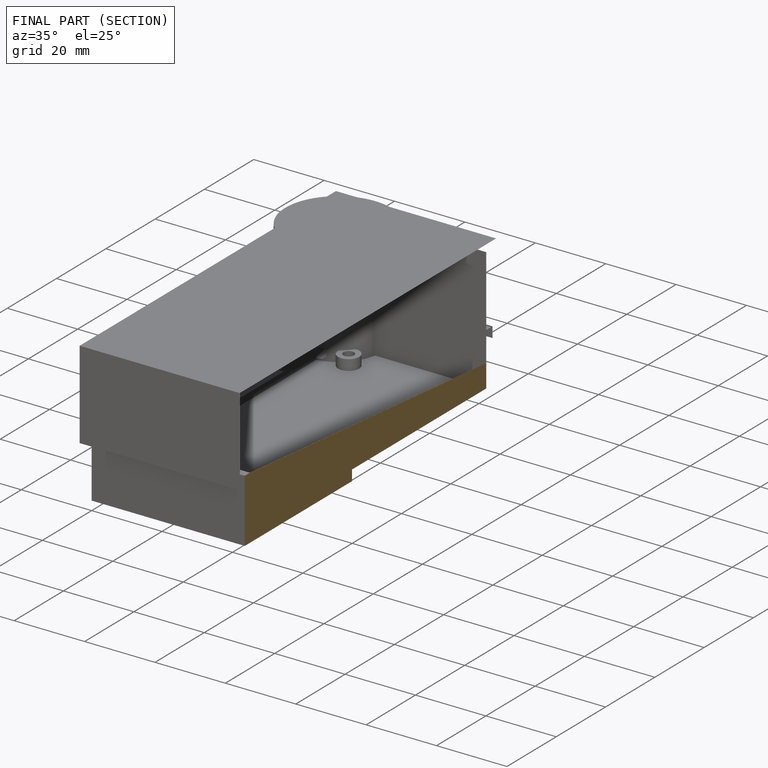
[diagram: finished part — half-section view (interior)]
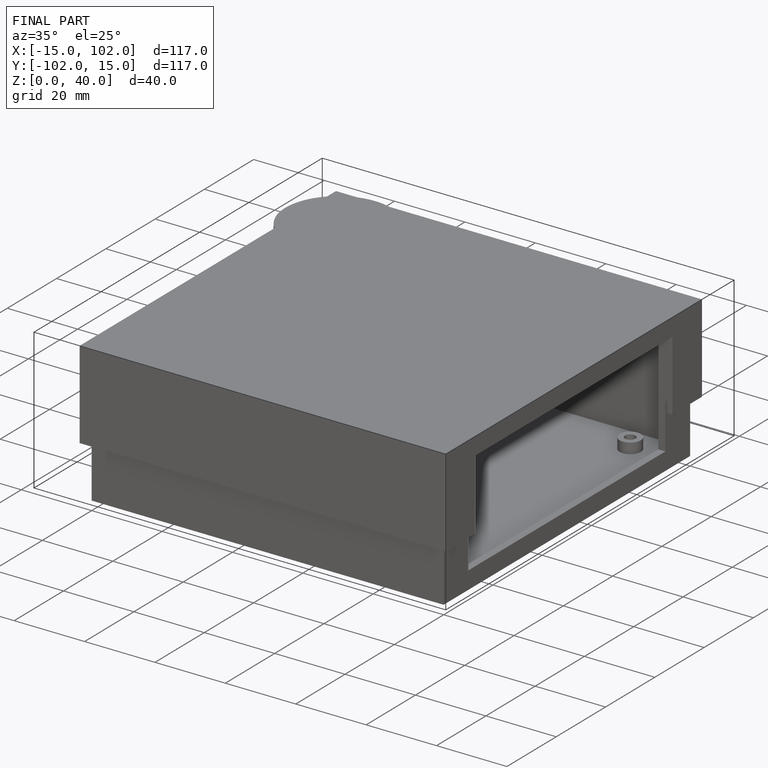
[diagram: finished part — iso view with bounding-box wireframe]
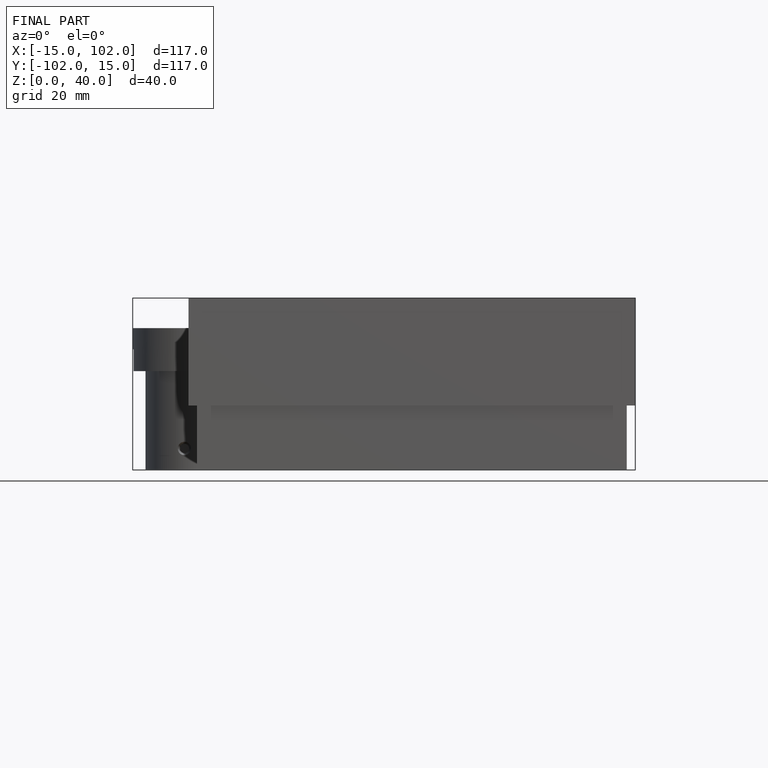
[diagram: finished part — front view with bounding-box wireframe]
